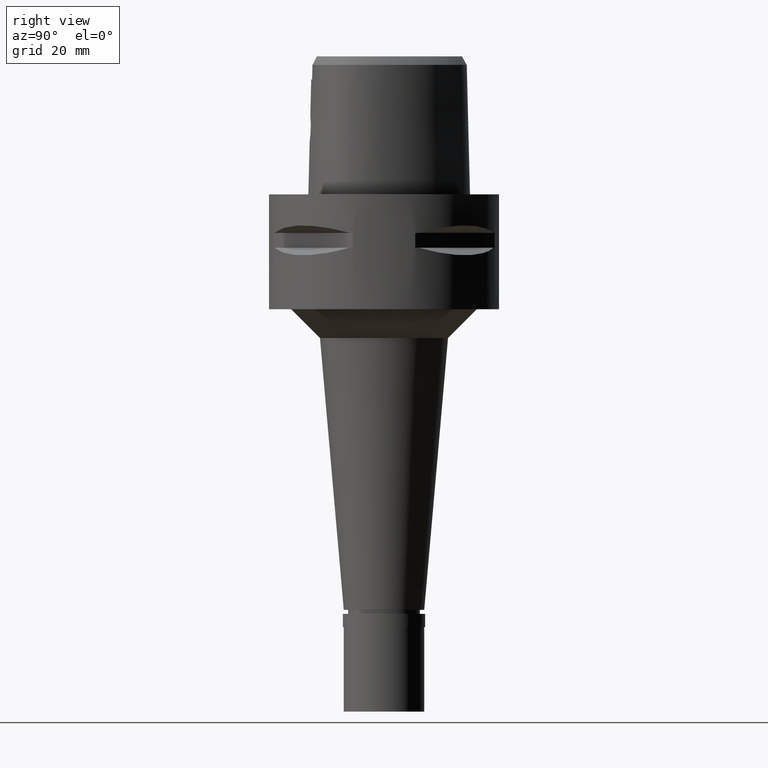
[diagram: clean part render]
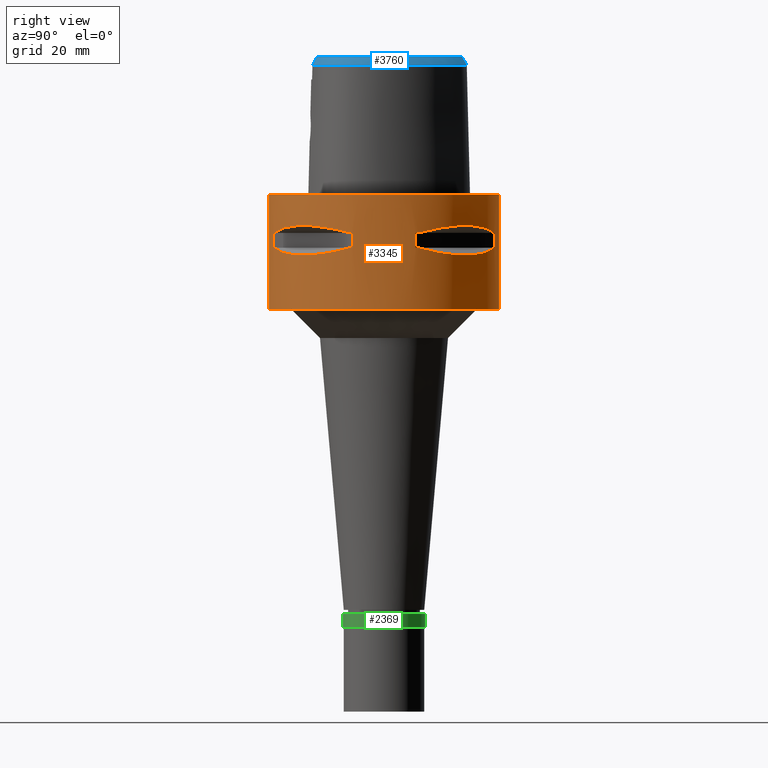
[diagram: same view with three faces highlighted in distinct colors, each labeled with its STEP entity id]
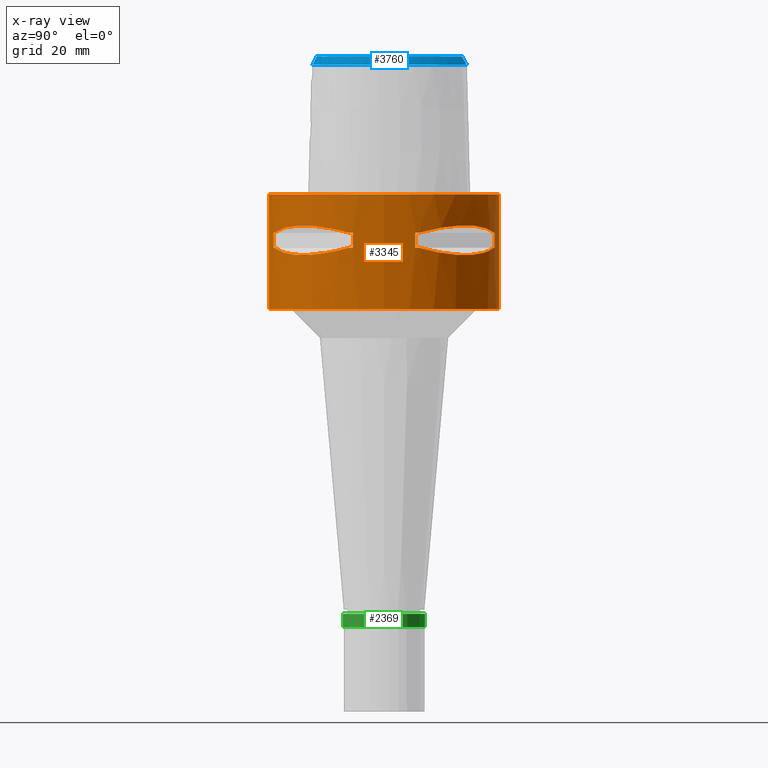
[diagram: x-ray of the same camera — body ghosted, the three highlighted faces saturated]
A machine part, right view with three faces highlighted in distinct colors.
The next image is the same camera in x-ray (body ghosted, the three faces saturated) — at least one of them is partly hidden behind the body in this view.
Their STEP definitions:

[orange] entity #3345 — the highlighted cylindrical surface (partial cylindrical patch) has radius 20 mm, axis along (0, 0, -1).
#32 = CARTESIAN_POINT ( 'NONE',  ( 0.0000000000000000000, 0.0000000000000000000, -9.299999999999998934 ) ) ;
#54 = CIRCLE ( 'NONE', #4003, 20.00000000000000000 ) ;
#57 = CARTESIAN_POINT ( 'NONE',  ( 7.974729623724734928, -18.37435100509765817, -9.808037949571737357 ) ) ;
#69 = CARTESIAN_POINT ( 'NONE',  ( 6.037787676659999825, 19.06685920573999837, -6.700000000000000178 ) ) ;
#76 = CARTESIAN_POINT ( 'NONE',  ( 10.41688921769544152, -17.07309310408732017, -10.27380911531018626 ) ) ;
#96 = CARTESIAN_POINT ( 'NONE',  ( 6.037787676659999825, 19.06685920573999837, -9.299999999999998934 ) ) ;
#112 = CARTESIAN_POINT ( 'NONE',  ( 11.78782756882606364, 16.23556379045571063, -5.510086664174642657 ) ) ;
#125 = VECTOR ( 'NONE', #1852, 1000.000000000000000 ) ;
#156 = CARTESIAN_POINT ( 'NONE',  ( 17.73693809362815088, 9.258624582125795754, -10.07196314004715099 ) ) ;
#232 = CARTESIAN_POINT ( 'NONE',  ( 0.0000000000000000000, 0.0000000000000000000, 0.0000000000000000000 ) ) ;
#268 = AXIS2_PLACEMENT_3D ( 'NONE', #32, #3578, #2477 ) ;
#269 = AXIS2_PLACEMENT_3D ( 'NONE', #2880, #4284, #2174 ) ;
#342 = ORIENTED_EDGE ( 'NONE', *, *, #2481, .T. ) ;
#343 = CIRCLE ( 'NONE', #2329, 20.00000000000000000 ) ;
#348 = DIRECTION ( 'NONE',  ( 0.0000000000000000000, 0.0000000000000000000, 1.000000000000000000 ) ) ;
#379 = CARTESIAN_POINT ( 'NONE',  ( 19.24906036483000094, -5.428966298579000593, -9.299999999999998934 ) ) ;
#388 = EDGE_CURVE ( 'NONE', #1704, #2177, #4295, .T. ) ;
#434 = CARTESIAN_POINT ( 'NONE',  ( 0.0000000000000000000, 20.00000000000000000, 0.0000000000000000000 ) ) ;
#473 = CARTESIAN_POINT ( 'NONE',  ( 5.428966298580000682, 19.24906036483000094, -9.299999999999998934 ) ) ;
#499 = ORIENTED_EDGE ( 'NONE', *, *, #4597, .F. ) ;
#537 = CARTESIAN_POINT ( 'NONE',  ( 13.03584482972171266, -15.24842641774018581, -5.401930550037071121 ) ) ;
#552 = CARTESIAN_POINT ( 'NONE',  ( 13.59286613331094351, 14.69143800709372627, -10.59808963984076335 ) ) ;
#573 = CIRCLE ( 'NONE', #3400, 20.00000000000000000 ) ;
#580 = EDGE_CURVE ( 'NONE', #1644, #904, #1312, .T. ) ;
#586 = CARTESIAN_POINT ( 'NONE',  ( 9.064227960972564446, -17.89933467640224052, -5.942799019125474480 ) ) ;
#604 = CYLINDRICAL_SURFACE ( 'NONE', #2045, 20.00000000000000000 ) ;
#605 = CARTESIAN_POINT ( 'NONE',  ( 18.81740308416346608, 6.825550513448870760, -9.519762796229871427 ) ) ;
#650 = CIRCLE ( 'NONE', #1897, 20.00000000000000000 ) ;
#666 = FACE_BOUND ( 'NONE', #4525, .T. ) ;
#685 = DIRECTION ( 'NONE',  ( 0.9624530182415160784, -0.2714483149290045083, 0.0000000000000000000 ) ) ;
#728 = ORIENTED_EDGE ( 'NONE', *, *, #1124, .F. ) ;
#750 = VERTEX_POINT ( 'NONE', #1203 ) ;
#763 = CARTESIAN_POINT ( 'NONE',  ( 0.0000000000000000000, 0.0000000000000000000, -9.299999999999998934 ) ) ;
#775 = VERTEX_POINT ( 'NONE', #4491 ) ;
#795 = EDGE_CURVE ( 'NONE', #2006, #2554, #1519, .T. ) ;
#811 = CARTESIAN_POINT ( 'NONE',  ( 16.83802176568802622, -10.79324770715252413, -10.33148935319403883 ) ) ;
#817 = CARTESIAN_POINT ( 'NONE',  ( 19.06685920573999837, 6.037787676656000357, -9.299999999999998934 ) ) ;
#854 = CARTESIAN_POINT ( 'NONE',  ( 6.037787676659999825, -19.06685920573999837, -6.700000000000000178 ) ) ;
#860 = EDGE_CURVE ( 'NONE', #3029, #2282, #2874, .T. ) ;
#892 = CARTESIAN_POINT ( 'NONE',  ( 10.58740791271423909, 16.96779488243710787, -10.30043526206615567 ) ) ;
#904 = VERTEX_POINT ( 'NONE', #3972 ) ;
#914 = CARTESIAN_POINT ( 'NONE',  ( 17.04620345718633700, 10.46079808215841567, -10.28075718178489417 ) ) ;
#924 = CIRCLE ( 'NONE', #3685, 20.00000000000000000 ) ;
#928 = EDGE_CURVE ( 'NONE', #1041, #775, #924, .T. ) ;
#934 = ORIENTED_EDGE ( 'NONE', *, *, #388, .T. ) ;
#946 = CARTESIAN_POINT ( 'NONE',  ( 11.07873582668854873, 16.65304730897659979, -10.37252388421045168 ) ) ;
#1017 = ORIENTED_EDGE ( 'NONE', *, *, #4045, .T. ) ;
#1039 = CARTESIAN_POINT ( 'NONE',  ( 19.24906036483000094, 5.428966298580000682, -6.700000000000000178 ) ) ;
#1041 = VERTEX_POINT ( 'NONE', #3127 ) ;
#1124 = EDGE_CURVE ( 'NONE', #2652, #904, #2499, .T. ) ;
#1132 = CARTESIAN_POINT ( 'NONE',  ( 11.83046278586042455, -16.20025983931244795, -10.49456541975413160 ) ) ;
#1203 = CARTESIAN_POINT ( 'NONE',  ( 0.0000000000000000000, -20.00000000000000000, 0.0000000000000000000 ) ) ;
#1215 = CARTESIAN_POINT ( 'NONE',  ( 17.38810193308686536, 9.886368560429467323, -10.18582677984566942 ) ) ;
#1225 = CARTESIAN_POINT ( 'NONE',  ( 15.24842641774014851, -13.03584482972175884, -5.401917027256927462 ) ) ;
#1267 = CARTESIAN_POINT ( 'NONE',  ( 7.613705726455415324, 18.56782271116866667, -9.739635053951536392 ) ) ;
#1295 = CARTESIAN_POINT ( 'NONE',  ( 0.0000000000000000000, 20.00000000000000000, 0.0000000000000000000 ) ) ;
#1303 = DIRECTION ( 'NONE',  ( 0.0000000000000000000, 1.000000000000000000, 0.0000000000000000000 ) ) ;
#1310 = VERTEX_POINT ( 'NONE', #4478 ) ;
#1312 = CIRCLE ( 'NONE', #269, 20.00000000000000711 ) ;
#1352 = B_SPLINE_CURVE_WITH_KNOTS ( 'NONE', 3,
 ( #854, #3375, #586, #4064, #537, #1225, #4435, #2262, #1964, #3785 ),
 .UNSPECIFIED., .F., .F.,
 ( 4, 2, 2, 2, 4 ),
 ( 0.0000000000000000000, 0.2500000000000000000, 0.5000000000000000000, 0.7500000000000000000, 1.000000000000000000 ),
 .UNSPECIFIED. ) ;
#1421 = DIRECTION ( 'NONE',  ( 0.0000000000000000000, 0.0000000000000000000, -1.000000000000000000 ) ) ;
#1430 = CARTESIAN_POINT ( 'NONE',  ( 16.27164763637911804, -11.64036391731683473, -10.44610182776454010 ) ) ;
#1489 = CARTESIAN_POINT ( 'NONE',  ( 16.92907764914690816, -10.64933512882904587, -10.30991069787599557 ) ) ;
#1493 = CARTESIAN_POINT ( 'NONE',  ( 19.06685920573999837, 6.037787676659999825, -6.700000000000000178 ) ) ;
#1514 = B_SPLINE_CURVE_WITH_KNOTS ( 'NONE', 3,
 ( #2849, #2566, #57, #2131, #3201, #2930, #3262, #76, #2873, #3995, #1132, #3242, #2506, #4019, #1430, #1770, #811, #1489, #3619, #3579, #2524, #3953, #3279, #2211 ),
 .UNSPECIFIED., .F., .F.,
 ( 4, 1, 1, 1, 1, 1, 2, 2, 2, 1, 1, 1, 1, 1, 2, 2, 4 ),
 ( 0.0000000000000000000, 0.1250000000000094091, 0.1875000000000141831, 0.2187500000000164591, 0.2343750000000175415, 0.2421875000000181521, 0.2460937500000183464, 0.2500000000000185407, 0.5000000000000102141, 0.6250000000000058842, 0.6875000000000037748, 0.7187500000000027756, 0.7343750000000024425, 0.7421875000000022204, 0.7460937500000022204, 0.7500000000000021094, 1.000000000000000000 ),
 .UNSPECIFIED. ) ;
#1515 = ORIENTED_EDGE ( 'NONE', *, *, #4071, .F. ) ;
#1517 = EDGE_CURVE ( 'NONE', #1667, #4314, #343, .T. ) ;
#1519 = CIRCLE ( 'NONE', #268, 20.00000000000000711 ) ;
#1522 = VECTOR ( 'NONE', #2178, 1000.000000000000000 ) ;
#1525 = CARTESIAN_POINT ( 'NONE',  ( 15.24842641774012719, 13.03584482972177838, -5.401930550037071121 ) ) ;
#1568 = CARTESIAN_POINT ( 'NONE',  ( 10.64933512882904587, 16.92907764914690816, -10.30991069787599557 ) ) ;
#1569 = EDGE_LOOP ( 'NONE', ( #1017, #4602, #3705, #3747, #3830, #1515, #2512, #2221 ) ) ;
#1595 = AXIS2_PLACEMENT_3D ( 'NONE', #763, #1601, #1963 ) ;
#1601 = DIRECTION ( 'NONE',  ( 0.0000000000000000000, 0.0000000000000000000, -1.000000000000000000 ) ) ;
#1644 = VERTEX_POINT ( 'NONE', #817 ) ;
#1649 = VERTEX_POINT ( 'NONE', #434 ) ;
#1667 = VERTEX_POINT ( 'NONE', #2597 ) ;
#1679 = EDGE_CURVE ( 'NONE', #1704, #2282, #2552, .T. ) ;
#1692 = EDGE_LOOP ( 'NONE', ( #342, #3825, #4053, #499 ) ) ;
#1704 = VERTEX_POINT ( 'NONE', #473 ) ;
#1770 = CARTESIAN_POINT ( 'NONE',  ( 16.65304730897659979, -11.07873582668854873, -10.37252388421045168 ) ) ;
#1785 = CARTESIAN_POINT ( 'NONE',  ( 19.24906036483000094, 5.428966298579000593, -6.700000000000000178 ) ) ;
#1791 = CARTESIAN_POINT ( 'NONE',  ( 0.0000000000000000000, 0.0000000000000000000, -6.700000000000000178 ) ) ;
#1805 = CIRCLE ( 'NONE', #2538, 20.00000000000000711 ) ;
#1841 = CARTESIAN_POINT ( 'NONE',  ( 5.428966298579000593, 19.24906036483000094, -9.299999999999998934 ) ) ;
#1845 = DIRECTION ( 'NONE',  ( 0.2714483149290045083, -0.9624530182415160784, 0.0000000000000000000 ) ) ;
#1852 = DIRECTION ( 'NONE',  ( 0.0000000000000000000, 0.0000000000000000000, 1.000000000000000000 ) ) ;
#1861 = CARTESIAN_POINT ( 'NONE',  ( 9.064296220445349661, 17.89930010962307705, -5.942778734625640880 ) ) ;
#1897 = AXIS2_PLACEMENT_3D ( 'NONE', #3573, #3256, #1845 ) ;
#1929 = LINE ( 'NONE', #3367, #3536 ) ;
#1934 = DIRECTION ( 'NONE',  ( 0.0000000000000000000, 0.0000000000000000000, 1.000000000000000000 ) ) ;
#1963 = DIRECTION ( 'NONE',  ( 0.2714483149290045083, 0.9624530182415160784, 0.0000000000000000000 ) ) ;
#1964 = CARTESIAN_POINT ( 'NONE',  ( 18.57569612330580711, -7.588842109405616654, -6.267301168158926572 ) ) ;
#2004 = CARTESIAN_POINT ( 'NONE',  ( 6.037787676659999825, 19.06685920573999837, -9.299999999999998934 ) ) ;
#2006 = VERTEX_POINT ( 'NONE', #3539 ) ;
#2023 = FACE_BOUND ( 'NONE', #1569, .T. ) ;
#2045 = AXIS2_PLACEMENT_3D ( 'NONE', #3143, #2067, #4246 ) ;
#2061 = B_SPLINE_CURVE_WITH_KNOTS ( 'NONE', 3,
 ( #4012, #2947, #2922, #4340, #1525, #3236, #112, #1861, #3947, #69 ),
 .UNSPECIFIED., .F., .F.,
 ( 4, 2, 2, 2, 4 ),
 ( 0.0000000000000000000, 0.2500000000000000000, 0.5000000000000000000, 0.7500000000000000000, 1.000000000000000000 ),
 .UNSPECIFIED. ) ;
#2067 = DIRECTION ( 'NONE',  ( 0.0000000000000000000, 0.0000000000000000000, -1.000000000000000000 ) ) ;
#2085 = EDGE_CURVE ( 'NONE', #2006, #4314, #1514, .T. ) ;
#2094 = ORIENTED_EDGE ( 'NONE', *, *, #1679, .F. ) ;
#2131 = CARTESIAN_POINT ( 'NONE',  ( 9.258624582125795754, -17.73693809362815088, -10.07196314004715099 ) ) ;
#2137 = CARTESIAN_POINT ( 'NONE',  ( 0.0000000000000000000, 0.0000000000000000000, -9.299999999999998934 ) ) ;
#2174 = DIRECTION ( 'NONE',  ( 0.9533429602871387187, 0.3018893838328123858, 0.0000000000000000000 ) ) ;
#2177 = VERTEX_POINT ( 'NONE', #96 ) ;
#2178 = DIRECTION ( 'NONE',  ( 0.0000000000000000000, 0.0000000000000000000, 1.000000000000000000 ) ) ;
#2186 = EDGE_CURVE ( 'NONE', #1667, #2439, #3642, .T. ) ;
#2211 = CARTESIAN_POINT ( 'NONE',  ( 19.06685920573999837, -6.037787676659999825, -9.299999999999998934 ) ) ;
#2220 = LINE ( 'NONE', #3666, #2268 ) ;
#2221 = ORIENTED_EDGE ( 'NONE', *, *, #2417, .T. ) ;
#2262 = CARTESIAN_POINT ( 'NONE',  ( 17.89930010962307705, -9.064296220445340779, -5.942778734625640880 ) ) ;
#2268 = VECTOR ( 'NONE', #4447, 1000.000000000000000 ) ;
#2277 = DIRECTION ( 'NONE',  ( 0.9533429602871387187, -0.3018893838328123858, 0.0000000000000000000 ) ) ;
#2278 = ORIENTED_EDGE ( 'NONE', *, *, #860, .T. ) ;
#2282 = VERTEX_POINT ( 'NONE', #3402 ) ;
#2326 = CARTESIAN_POINT ( 'NONE',  ( 10.54606745823029712, 16.99353821201643910, -10.29406776248769440 ) ) ;
#2329 = AXIS2_PLACEMENT_3D ( 'NONE', #2137, #4245, #685 ) ;
#2351 = CARTESIAN_POINT ( 'NONE',  ( 12.72622750479833797, 15.46304525448562828, -10.55929324095781041 ) ) ;
#2417 = EDGE_CURVE ( 'NONE', #1310, #2993, #1352, .T. ) ;
#2439 = VERTEX_POINT ( 'NONE', #3404 ) ;
#2477 = DIRECTION ( 'NONE',  ( 0.3018893838328123858, -0.9533429602871387187, 0.0000000000000000000 ) ) ;
#2481 = EDGE_CURVE ( 'NONE', #1649, #750, #54, .T. ) ;
#2499 = LINE ( 'NONE', #1785, #4592 ) ;
#2506 = CARTESIAN_POINT ( 'NONE',  ( 14.69143800709372627, -13.59286613331094351, -10.59808963984076335 ) ) ;
#2512 = ORIENTED_EDGE ( 'NONE', *, *, #2935, .T. ) ;
#2524 = CARTESIAN_POINT ( 'NONE',  ( 17.00564674891199246, -10.52654956716423484, -10.29104290631413576 ) ) ;
#2538 = AXIS2_PLACEMENT_3D ( 'NONE', #2664, #4480, #2277 ) ;
#2552 = LINE ( 'NONE', #1841, #1522 ) ;
#2554 = VERTEX_POINT ( 'NONE', #3805 ) ;
#2566 = CARTESIAN_POINT ( 'NONE',  ( 6.825550513448870760, -18.81740308416346608, -9.519762796229871427 ) ) ;
#2597 = CARTESIAN_POINT ( 'NONE',  ( 19.24906036483000094, -5.428966298580000682, -9.299999999999998934 ) ) ;
#2652 = VERTEX_POINT ( 'NONE', #1039 ) ;
#2655 = EDGE_CURVE ( 'NONE', #2652, #4131, #573, .T. ) ;
#2664 = CARTESIAN_POINT ( 'NONE',  ( 0.0000000000000000000, 0.0000000000000000000, -6.700000000000000178 ) ) ;
#2825 = ORIENTED_EDGE ( 'NONE', *, *, #2655, .T. ) ;
#2849 = CARTESIAN_POINT ( 'NONE',  ( 6.037787676656000357, -19.06685920573999837, -9.299999999999998934 ) ) ;
#2865 = EDGE_CURVE ( 'NONE', #4131, #3029, #2061, .T. ) ;
#2872 = DIRECTION ( 'NONE',  ( 0.3018893838328123858, 0.9533429602871387187, 0.0000000000000000000 ) ) ;
#2873 = CARTESIAN_POINT ( 'NONE',  ( 10.46079808215841567, -17.04620345718633700, -10.28075718178489417 ) ) ;
#2874 = CIRCLE ( 'NONE', #2936, 20.00000000000000711 ) ;
#2880 = CARTESIAN_POINT ( 'NONE',  ( 0.0000000000000000000, 0.0000000000000000000, -9.299999999999998934 ) ) ;
#2922 = CARTESIAN_POINT ( 'NONE',  ( 17.89933467640223697, 9.064227960972564446, -5.942799019125474480 ) ) ;
#2930 = CARTESIAN_POINT ( 'NONE',  ( 10.19668967435709206, -17.20615142661460695, -10.23823386088513132 ) ) ;
#2935 = EDGE_CURVE ( 'NONE', #3732, #1310, #650, .T. ) ;
#2936 = AXIS2_PLACEMENT_3D ( 'NONE', #1791, #4327, #2872 ) ;
#2947 = CARTESIAN_POINT ( 'NONE',  ( 18.57571147347044871, 7.588793634791458409, -6.267314691158815343 ) ) ;
#2993 = VERTEX_POINT ( 'NONE', #4298 ) ;
#3024 = DIRECTION ( 'NONE',  ( 0.0000000000000000000, -1.000000000000000000, 0.0000000000000000000 ) ) ;
#3027 = DIRECTION ( 'NONE',  ( 0.0000000000000000000, 0.0000000000000000000, -1.000000000000000000 ) ) ;
#3029 = VERTEX_POINT ( 'NONE', #3743 ) ;
#3046 = CARTESIAN_POINT ( 'NONE',  ( 18.37435100509765817, 7.974729623724734928, -9.808037949571737357 ) ) ;
#3066 = CARTESIAN_POINT ( 'NONE',  ( 17.03197491928962748, 10.48392761238952708, -10.28439099668885248 ) ) ;
#3097 = DIRECTION ( 'NONE',  ( 0.0000000000000000000, 0.0000000000000000000, -1.000000000000000000 ) ) ;
#3127 = CARTESIAN_POINT ( 'NONE',  ( 0.0000000000000000000, -20.00000000000000000, -20.00000000000000000 ) ) ;
#3128 = DIRECTION ( 'NONE',  ( 0.9624530182415160784, 0.2714483149290045083, 0.0000000000000000000 ) ) ;
#3143 = CARTESIAN_POINT ( 'NONE',  ( 0.0000000000000000000, 0.0000000000000000000, 4.299999999999999822 ) ) ;
#3149 = CARTESIAN_POINT ( 'NONE',  ( 0.0000000000000000000, 0.0000000000000000000, -6.700000000000000178 ) ) ;
#3201 = CARTESIAN_POINT ( 'NONE',  ( 9.886368560429467323, -17.38810193308686536, -10.18582677984566942 ) ) ;
#3236 = CARTESIAN_POINT ( 'NONE',  ( 13.03584482972173575, 15.24842641774016450, -5.401917027256927462 ) ) ;
#3242 = CARTESIAN_POINT ( 'NONE',  ( 13.04353085699901804, -15.24067460456459600, -10.59804935437259488 ) ) ;
#3256 = DIRECTION ( 'NONE',  ( 0.0000000000000000000, 0.0000000000000000000, 1.000000000000000000 ) ) ;
#3262 = CARTESIAN_POINT ( 'NONE',  ( 10.35096251251484389, -17.11329306682806717, -10.26330621668990872 ) ) ;
#3279 = CARTESIAN_POINT ( 'NONE',  ( 18.56782271116866667, -7.613705726455415324, -9.739635053951536392 ) ) ;
#3345 = ADVANCED_FACE ( 'NONE', ( #3497, #2023, #666 ), #604, .T. ) ;
#3347 = CARTESIAN_POINT ( 'NONE',  ( 17.20615142661460695, 10.19668967435709206, -10.23823386088513132 ) ) ;
#3367 = CARTESIAN_POINT ( 'NONE',  ( 5.428966298579000593, -19.24906036483000094, -6.700000000000000178 ) ) ;
#3375 = CARTESIAN_POINT ( 'NONE',  ( 7.588793634791429987, -18.57571147347045937, -6.267314691158815343 ) ) ;
#3378 = CARTESIAN_POINT ( 'NONE',  ( 19.06685920573999837, -6.037787676659999825, -9.299999999999998934 ) ) ;
#3395 = CARTESIAN_POINT ( 'NONE',  ( 17.07309310408732017, 10.41688921769544152, -10.27380911531018626 ) ) ;
#3400 = AXIS2_PLACEMENT_3D ( 'NONE', #3149, #348, #3128 ) ;
#3402 = CARTESIAN_POINT ( 'NONE',  ( 5.428966298579000593, 19.24906036483000094, -6.700000000000000178 ) ) ;
#3404 = CARTESIAN_POINT ( 'NONE',  ( 19.24906036483000094, -5.428966298579000593, -6.700000000000000178 ) ) ;
#3477 = B_SPLINE_CURVE_WITH_KNOTS ( 'NONE', 3,
 ( #4428, #605, #3046, #156, #1215, #3347, #4057, #3395, #914, #3066, #3801, #3777, #552, #2351, #4087, #946, #4165, #1568, #892, #2326, #4457, #3744, #1267, #2004 ),
 .UNSPECIFIED., .F., .F.,
 ( 4, 1, 1, 1, 1, 1, 2, 2, 2, 1, 1, 1, 1, 1, 2, 2, 4 ),
 ( 0.0000000000000000000, 0.1250000000000094091, 0.1875000000000141831, 0.2187500000000164591, 0.2343750000000175415, 0.2421875000000181521, 0.2460937500000183464, 0.2500000000000185407, 0.5000000000000102141, 0.6250000000000058842, 0.6875000000000037748, 0.7187500000000027756, 0.7343750000000024425, 0.7421875000000022204, 0.7460937500000022204, 0.7500000000000021094, 1.000000000000000000 ),
 .UNSPECIFIED. ) ;
#3497 = FACE_OUTER_BOUND ( 'NONE', #1692, .T. ) ;
#3536 = VECTOR ( 'NONE', #4110, 1000.000000000000000 ) ;
#3539 = CARTESIAN_POINT ( 'NONE',  ( 6.037787676656000357, -19.06685920573999837, -9.299999999999998934 ) ) ;
#3573 = CARTESIAN_POINT ( 'NONE',  ( 0.0000000000000000000, 0.0000000000000000000, -6.700000000000000178 ) ) ;
#3578 = DIRECTION ( 'NONE',  ( 0.0000000000000000000, 0.0000000000000000000, -1.000000000000000000 ) ) ;
#3579 = CARTESIAN_POINT ( 'NONE',  ( 16.99353821201643910, -10.54606745823029712, -10.29406776248769440 ) ) ;
#3619 = CARTESIAN_POINT ( 'NONE',  ( 16.96779488243710787, -10.58740791271423909, -10.30043526206615567 ) ) ;
#3642 = LINE ( 'NONE', #379, #125 ) ;
#3666 = CARTESIAN_POINT ( 'NONE',  ( 0.0000000000000000000, -20.00000000000000000, 0.0000000000000000000 ) ) ;
#3685 = AXIS2_PLACEMENT_3D ( 'NONE', #4385, #1934, #3024 ) ;
#3705 = ORIENTED_EDGE ( 'NONE', *, *, #1517, .T. ) ;
#3732 = VERTEX_POINT ( 'NONE', #4473 ) ;
#3743 = CARTESIAN_POINT ( 'NONE',  ( 6.037787676659999825, 19.06685920573999837, -6.700000000000000178 ) ) ;
#3744 = CARTESIAN_POINT ( 'NONE',  ( 9.102657680280412222, 17.88526274348011214, -10.06884320373553443 ) ) ;
#3745 = EDGE_CURVE ( 'NONE', #750, #1041, #2220, .T. ) ;
#3747 = ORIENTED_EDGE ( 'NONE', *, *, #2085, .F. ) ;
#3751 = VECTOR ( 'NONE', #3097, 1000.000000000000000 ) ;
#3777 = CARTESIAN_POINT ( 'NONE',  ( 15.24067460456459600, 13.04353085699901804, -10.59804935437259488 ) ) ;
#3785 = CARTESIAN_POINT ( 'NONE',  ( 19.06685920573999837, -6.037787676659999825, -6.700000000000000178 ) ) ;
#3801 = CARTESIAN_POINT ( 'NONE',  ( 16.20025983931244795, 11.83046278586042455, -10.49456541975413160 ) ) ;
#3802 = LINE ( 'NONE', #1295, #3751 ) ;
#3805 = CARTESIAN_POINT ( 'NONE',  ( 5.428966298579000593, -19.24906036483000094, -9.299999999999998934 ) ) ;
#3825 = ORIENTED_EDGE ( 'NONE', *, *, #3745, .T. ) ;
#3830 = ORIENTED_EDGE ( 'NONE', *, *, #795, .T. ) ;
#3918 = EDGE_CURVE ( 'NONE', #1644, #2177, #3477, .T. ) ;
#3947 = CARTESIAN_POINT ( 'NONE',  ( 7.588842109405645076, 18.57569612330578934, -6.267301168158926572 ) ) ;
#3953 = CARTESIAN_POINT ( 'NONE',  ( 17.88526274348011214, -9.102657680280412222, -10.06884320373553443 ) ) ;
#3972 = CARTESIAN_POINT ( 'NONE',  ( 19.24906036483000094, 5.428966298579000593, -9.299999999999998934 ) ) ;
#3995 = CARTESIAN_POINT ( 'NONE',  ( 10.48392761238952708, -17.03197491928962748, -10.28439099668885248 ) ) ;
#4003 = AXIS2_PLACEMENT_3D ( 'NONE', #232, #3027, #1303 ) ;
#4009 = ORIENTED_EDGE ( 'NONE', *, *, #2865, .T. ) ;
#4012 = CARTESIAN_POINT ( 'NONE',  ( 19.06685920573999837, 6.037787676659999825, -6.700000000000000178 ) ) ;
#4019 = CARTESIAN_POINT ( 'NONE',  ( 15.46304525448562828, -12.72622750479833797, -10.55929324095781041 ) ) ;
#4045 = EDGE_CURVE ( 'NONE', #2993, #2439, #1805, .T. ) ;
#4053 = ORIENTED_EDGE ( 'NONE', *, *, #928, .T. ) ;
#4057 = CARTESIAN_POINT ( 'NONE',  ( 17.11329306682806717, 10.35096251251484389, -10.26330621668990872 ) ) ;
#4064 = CARTESIAN_POINT ( 'NONE',  ( 11.78776565403155452, -16.23560874349854188, -5.510106948674472704 ) ) ;
#4071 = EDGE_CURVE ( 'NONE', #3732, #2554, #1929, .T. ) ;
#4087 = CARTESIAN_POINT ( 'NONE',  ( 11.64036391731683473, 16.27164763637911804, -10.44610182776454010 ) ) ;
#4105 = ORIENTED_EDGE ( 'NONE', *, *, #3918, .F. ) ;
#4110 = DIRECTION ( 'NONE',  ( 0.0000000000000000000, 0.0000000000000000000, -1.000000000000000000 ) ) ;
#4131 = VERTEX_POINT ( 'NONE', #1493 ) ;
#4137 = ORIENTED_EDGE ( 'NONE', *, *, #580, .T. ) ;
#4165 = CARTESIAN_POINT ( 'NONE',  ( 10.79324770715252413, 16.83802176568802622, -10.33148935319403883 ) ) ;
#4245 = DIRECTION ( 'NONE',  ( 0.0000000000000000000, 0.0000000000000000000, -1.000000000000000000 ) ) ;
#4246 = DIRECTION ( 'NONE',  ( 0.0000000000000000000, -1.000000000000000000, 0.0000000000000000000 ) ) ;
#4284 = DIRECTION ( 'NONE',  ( 0.0000000000000000000, 0.0000000000000000000, -1.000000000000000000 ) ) ;
#4295 = CIRCLE ( 'NONE', #1595, 20.00000000000000000 ) ;
#4298 = CARTESIAN_POINT ( 'NONE',  ( 19.06685920573999837, -6.037787676659999825, -6.700000000000000178 ) ) ;
#4314 = VERTEX_POINT ( 'NONE', #3378 ) ;
#4327 = DIRECTION ( 'NONE',  ( 0.0000000000000000000, 0.0000000000000000000, 1.000000000000000000 ) ) ;
#4340 = CARTESIAN_POINT ( 'NONE',  ( 16.23560874349853833, 11.78776565403155097, -5.510106948674472704 ) ) ;
#4385 = CARTESIAN_POINT ( 'NONE',  ( 0.0000000000000000000, 0.0000000000000000000, -20.00000000000000000 ) ) ;
#4428 = CARTESIAN_POINT ( 'NONE',  ( 19.06685920573999837, 6.037787676656000357, -9.299999999999998934 ) ) ;
#4435 = CARTESIAN_POINT ( 'NONE',  ( 16.23556379045570353, -11.78782756882607430, -5.510086664174642657 ) ) ;
#4447 = DIRECTION ( 'NONE',  ( 0.0000000000000000000, 0.0000000000000000000, -1.000000000000000000 ) ) ;
#4457 = CARTESIAN_POINT ( 'NONE',  ( 10.52654956716423484, 17.00564674891199246, -10.29104290631413576 ) ) ;
#4473 = CARTESIAN_POINT ( 'NONE',  ( 5.428966298580000682, -19.24906036483000094, -6.700000000000000178 ) ) ;
#4478 = CARTESIAN_POINT ( 'NONE',  ( 6.037787676659999825, -19.06685920573999837, -6.700000000000000178 ) ) ;
#4480 = DIRECTION ( 'NONE',  ( 0.0000000000000000000, 0.0000000000000000000, 1.000000000000000000 ) ) ;
#4491 = CARTESIAN_POINT ( 'NONE',  ( 0.0000000000000000000, 20.00000000000000000, -20.00000000000000000 ) ) ;
#4525 = EDGE_LOOP ( 'NONE', ( #2278, #2094, #934, #4105, #4137, #728, #2825, #4009 ) ) ;
#4592 = VECTOR ( 'NONE', #1421, 1000.000000000000000 ) ;
#4597 = EDGE_CURVE ( 'NONE', #1649, #775, #3802, .T. ) ;
#4602 = ORIENTED_EDGE ( 'NONE', *, *, #2186, .F. ) ;

[blue] entity #3760 — the highlighted face is a freeform B-spline surface patch.
#1 = CARTESIAN_POINT ( 'NONE',  ( 11.81006716205999929, 2.189212511262000227, 24.13052106193999791 ) ) ;
#4 = CARTESIAN_POINT ( 'NONE',  ( 2.692731913842567160, 13.03725377846676814, 24.00000000000009592 ) ) ;
#43 = CARTESIAN_POINT ( 'NONE',  ( 3.643846516945125735, -11.46587366694246057, 24.00000000000046541 ) ) ;
#77 = CARTESIAN_POINT ( 'NONE',  ( 10.34630807758000159, 5.492018247395999531, 24.13052106667999652 ) ) ;
#85 = CARTESIAN_POINT ( 'NONE',  ( 0.5039711947921106105, 14.40001989752710010, 22.52071729251865406 ) ) ;
#97 = CARTESIAN_POINT ( 'NONE',  ( 13.63227641653000077, -3.329449864847000118, 22.39013405248999788 ) ) ;
#107 = CARTESIAN_POINT ( 'NONE',  ( 1.963025303842000024, -11.60905832938000160, 24.13052098894000252 ) ) ;
#122 = CARTESIAN_POINT ( 'NONE',  ( 12.76105701684999971, 1.303132645100000042, 22.97026491545999960 ) ) ;
#145 = CARTESIAN_POINT ( 'NONE',  ( 6.796481422754999890, 10.18985262332000019, 24.13052082896000172 ) ) ;
#151 = CARTESIAN_POINT ( 'NONE',  ( 2.053400038376000047, -12.57996435537000046, 22.39013395503000226 ) ) ;
#164 = CARTESIAN_POINT ( 'NONE',  ( 4.089701272763999640, 12.65026199070999979, 23.55039357557999935 ) ) ;
#169 = CARTESIAN_POINT ( 'NONE',  ( 4.886111490270000246, -11.79522946400000016, 22.97026416467999965 ) ) ;
#183 = CARTESIAN_POINT ( 'NONE',  ( 0.05264591111794999362, 14.47844725670999999, 22.39013337268000114 ) ) ;
#191 = CARTESIAN_POINT ( 'NONE',  ( 2.377474434223707522, -12.13327925686193076, 23.12252361346799034 ) ) ;
#211 = CARTESIAN_POINT ( 'NONE',  ( 3.022968524366999699, 13.87733817391000102, 22.39013232731999992 ) ) ;
#219 = CARTESIAN_POINT ( 'NONE',  ( 11.49689449937999974, -7.634862238721999539, 23.55039188125000038 ) ) ;
#233 = CARTESIAN_POINT ( 'NONE',  ( 4.409224838283000381, 13.21689020455999852, 22.39013967663000315 ) ) ;
#244 = CARTESIAN_POINT ( 'NONE',  ( 10.27182342860999853, -8.908091600447997749, 23.55039166630000125 ) ) ;
#259 = CARTESIAN_POINT ( 'NONE',  ( 2.665957755131999729, 12.96914336242999966, 24.13052112091000012 ) ) ;
#272 = CARTESIAN_POINT ( 'NONE',  ( 12.98107568482999952, -5.337610351114999929, 22.97026233217999902 ) ) ;
#294 = CARTESIAN_POINT ( 'NONE',  ( 11.80026550024000187, -7.203430906077000095, 23.55039162015999921 ) ) ;
#311 = CARTESIAN_POINT ( 'NONE',  ( 6.808380321013999037, -10.86744992220000050, 23.55039202614999994 ) ) ;
#335 = CARTESIAN_POINT ( 'NONE',  ( 7.023094116408000076, 10.42310841187999948, 23.55039252870999889 ) ) ;
#340 = CARTESIAN_POINT ( 'NONE',  ( 12.56325666867697244, -4.604231586668755760, 23.99999999999251443 ) ) ;
#386 = CARTESIAN_POINT ( 'NONE',  ( -6.946551618187000727E-11, 14.40001989798000182, 22.52071729252999788 ) ) ;
#430 = CARTESIAN_POINT ( 'NONE',  ( 12.11794621808999928, 2.293931203665000140, 23.55039172617999910 ) ) ;
#445 = CARTESIAN_POINT ( 'NONE',  ( 11.79281037736000037, 4.811037878664000011, 22.39013422256000041 ) ) ;
#452 = CARTESIAN_POINT ( 'NONE',  ( 11.58874808009404944, -7.066197077816963379, 24.00000000000117240 ) ) ;
#464 = CARTESIAN_POINT ( 'NONE',  ( 13.50815129570999851, -0.6872791593790998910, 22.39013294135000010 ) ) ;
#493 = CARTESIAN_POINT ( 'NONE',  ( 9.058821782142000956, 9.154131836344999940, 22.39013268793999956 ) ) ;
#501 = CARTESIAN_POINT ( 'NONE',  ( 12.68166859856362017, 2.767886240359183958, 22.52071729251865406 ) ) ;
#502 = CARTESIAN_POINT ( 'NONE',  ( 1.595174849006000040, -12.61593824801999908, 22.39013396345000118 ) ) ;
#518 = CARTESIAN_POINT ( 'NONE',  ( 5.708241364273000329, 11.97788608952999923, 22.97026197387000224 ) ) ;
#524 = CARTESIAN_POINT ( 'NONE',  ( 11.01301037807066585, 6.358384389067590625, 22.52071729251865406 ) ) ;
#525 = CARTESIAN_POINT ( 'NONE',  ( 4.734221550404999590, -11.16280305125000005, 24.13052083704999617 ) ) ;
#562 = CARTESIAN_POINT ( 'NONE',  ( 2.081566592262000359, 13.17408557024999993, 24.13052111046999926 ) ) ;
#587 = CARTESIAN_POINT ( 'NONE',  ( -0.4184594666395000107, 14.46178523705999908, 22.39013273297000239 ) ) ;
#598 = CARTESIAN_POINT ( 'NONE',  ( 12.28880761164000113, -6.304289478161999583, 23.55039175217999770 ) ) ;
#611 = CARTESIAN_POINT ( 'NONE',  ( 0.5360558819430000232, 14.13437562999000008, 22.97026221495000087 ) ) ;
#620 = CARTESIAN_POINT ( 'NONE',  ( 12.35409406223999973, -5.163883963129999977, 24.13052106932999763 ) ) ;
#641 = CARTESIAN_POINT ( 'NONE',  ( 13.10515938457000118, -6.018904401567000129, 22.39013347390000064 ) ) ;
#646 = CARTESIAN_POINT ( 'NONE',  ( 9.085466894420580530, 7.629604351704164067, 24.00000000000098055 ) ) ;
#661 = CARTESIAN_POINT ( 'NONE',  ( 7.938065359938999421, -11.10350764480000052, 22.39013254726000213 ) ) ;
#682 = CARTESIAN_POINT ( 'NONE',  ( 10.06310865082999939, -8.658593698913001901, 24.13052107931999757 ) ) ;
#686 = B_SPLINE_CURVE_WITH_KNOTS ( 'NONE', 3,
 ( #1141, #85, #771, #3311, #2242, #4420, #524, #501, #1875, #3716, #798, #2270, #4078, #1497, #2219, #3691, #1167, #2917, #3649, #3434, #4396, #4354 ),
 .UNSPECIFIED., .F., .F.,
 ( 4, 1, 1, 1, 1, 1, 1, 1, 1, 1, 1, 1, 1, 1, 1, 1, 1, 1, 1, 4 ),
 ( 0.0000000000000000000, 0.04407253041124743059, 0.08814506081995632236, 0.1762901216374798963, 0.2644351824550034702, 0.3525802432724213786, 0.4407253040899449248, 0.5288703649074685265, 0.5729428953162830629, 0.6170154257248863239, 0.6610879561337009713, 0.6831242213380024353, 0.7051604865425157298, 0.7271967517468173048, 0.7492330169512245730, 0.7933055473599334162, 0.8373780777687481747, 0.8814506081774570179, 0.9695956689949595253, 1.000000000000000000 ),
 .UNSPECIFIED. ) ;
#713 = CARTESIAN_POINT ( 'NONE',  ( 7.567267065261185977, -10.28066430934599396, 24.00000000000040501 ) ) ;
#721 = EDGE_CURVE ( 'NONE', #2115, #4566, #4020, .T. ) ;
#764 = CARTESIAN_POINT ( 'NONE',  ( 11.70392928600000104, 3.404056909026999644, 23.55039170170999796 ) ) ;
#771 = CARTESIAN_POINT ( 'NONE',  ( 1.515894610910908824, 14.29262276006012122, 22.52071729251865406 ) ) ;
#791 = CARTESIAN_POINT ( 'NONE',  ( 7.551999690776000307, 9.411243118406000363, 24.13052098015000269 ) ) ;
#798 = CARTESIAN_POINT ( 'NONE',  ( 13.49620531830028547, -4.288887307215953015, 22.52071729251865406 ) ) ;
#800 = CARTESIAN_POINT ( 'NONE',  ( 8.997867597935785611, -9.518809110956514274, 23.99999999999496225 ) ) ;
#812 = CARTESIAN_POINT ( 'NONE',  ( 12.67541202357000074, -2.524797313681000244, 24.13052106633999827 ) ) ;
#816 = CARTESIAN_POINT ( 'NONE',  ( 2.145199990287635305, -11.88057979211152571, 23.61561775300132382 ) ) ;
#828 = CARTESIAN_POINT ( 'NONE',  ( 9.290494191592999940, 7.776171942349000332, 23.55039211651000386 ) ) ;
#840 = CARTESIAN_POINT ( 'NONE',  ( 1.548494969715999758, -11.96760294637000044, 23.55039197998999967 ) ) ;
#856 = CARTESIAN_POINT ( 'NONE',  ( 1.044471906240000081, 13.74859854691000116, 23.55039168776000125 ) ) ;
#880 = CARTESIAN_POINT ( 'NONE',  ( 2.903964934621999561, 13.57460657008000027, 22.97026192518000087 ) ) ;
#887 = CARTESIAN_POINT ( 'NONE',  ( 1.651404508219999956, -11.63434239444000085, 24.13052098694000236 ) ) ;
#894 = CARTESIAN_POINT ( 'NONE',  ( 1.908900751366000126, -11.68567549349000068, 24.00000000000000000 ) ) ;
#899 = CARTESIAN_POINT ( 'NONE',  ( 6.470915596208000053, 11.36601639632000094, 22.97026281048999863 ) ) ;
#923 = CARTESIAN_POINT ( 'NONE',  ( -0.2518070859322999455, 13.81966984059999959, 23.55039173855999834 ) ) ;
#938 = CARTESIAN_POINT ( 'NONE',  ( 12.49284704517999955, -5.798927442829000078, 23.55039184326999901 ) ) ;
#945 = CARTESIAN_POINT ( 'NONE',  ( 4.650015056714705608, 12.01535282295140483, 24.00000000000050804 ) ) ;
#953 = CARTESIAN_POINT ( 'NONE',  ( 0.9946140531067999557, 13.42712570436999897, 24.13052107308999794 ) ) ;
#962 = CARTESIAN_POINT ( 'NONE',  ( 8.443710186296000231, -10.13004444791999958, 23.55039172133999870 ) ) ;
#966 = CARTESIAN_POINT ( 'NONE',  ( -1.335434154418999929E-10, 13.57127880780999796, 24.00000000000000000 ) ) ;
#982 = CARTESIAN_POINT ( 'NONE',  ( 6.694042571477000436, -10.56298741109999995, 24.13052097485000047 ) ) ;
#988 = CARTESIAN_POINT ( 'NONE',  ( 6.095079845025041188, 10.92785127078161800, 23.99999999999433697 ) ) ;
#1007 = CARTESIAN_POINT ( 'NONE',  ( 6.044136204777000643, -11.81536993202999852, 22.39013724615000100 ) ) ;
#1013 = CARTESIAN_POINT ( 'NONE',  ( 12.73107502715672368, -3.278999632795051689, 23.99999999999948130 ) ) ;
#1029 = CARTESIAN_POINT ( 'NONE',  ( 11.77285838414000096, -6.613480974386000355, 24.13052105434999817 ) ) ;
#1033 = CARTESIAN_POINT ( 'NONE',  ( 12.74858362814809709, -2.523908814685404511, 24.00000000000288836 ) ) ;
#1100 = CARTESIAN_POINT ( 'NONE',  ( 8.325294977168017141, -9.907519125942503280, 23.99999999999520028 ) ) ;
#1116 = CARTESIAN_POINT ( 'NONE',  ( 12.69470388432999997, 0.1881434738186000266, 23.55039274139999961 ) ) ;
#1119 = ORIENTED_EDGE ( 'NONE', *, *, #1616, .F. ) ;
#1133 = CARTESIAN_POINT ( 'NONE',  ( 10.26384229193999964, 6.910602993273999850, 22.97026278285000345 ) ) ;
#1141 = CARTESIAN_POINT ( 'NONE',  ( -6.946551618187000727E-11, 14.40001989798000182, 22.52071729252999788 ) ) ;
#1160 = CARTESIAN_POINT ( 'NONE',  ( 12.65800950909999933, -3.274909345779999814, 24.13052098104000009 ) ) ;
#1167 = CARTESIAN_POINT ( 'NONE',  ( 10.46238780067448104, -9.543612998139542114, 22.52071729251865406 ) ) ;
#1176 = CARTESIAN_POINT ( 'NONE',  ( 12.73370433014999925, 2.503368588470999967, 22.39013305467000237 ) ) ;
#1184 = CARTESIAN_POINT ( 'NONE',  ( 1.525155030070999951, -11.64343529554000156, 24.13052098825999892 ) ) ;
#1198 = CARTESIAN_POINT ( 'NONE',  ( 13.56266444579000030, -4.084541792417999417, 22.39013341745000218 ) ) ;
#1207 = CARTESIAN_POINT ( 'NONE',  ( 3.631057320955000112, -11.39383492468000014, 24.13052112712000152 ) ) ;
#1226 = CARTESIAN_POINT ( 'NONE',  ( 1.094329759373000144, 14.07007138944000069, 22.97026230242000011 ) ) ;
#1236 = CARTESIAN_POINT ( 'NONE',  ( 4.962056460202999730, -12.11144267036999977, 22.39013582850000006 ) ) ;
#1273 = CARTESIAN_POINT ( 'NONE',  ( 6.682652394649999827, 11.61286806112000036, 22.39013371138999986 ) ) ;
#1284 = CARTESIAN_POINT ( 'NONE',  ( 10.96460251507999928, -8.720882068983000224, 22.97026233140999807 ) ) ;
#1304 = CARTESIAN_POINT ( 'NONE',  ( 1.144187612507000074, 14.39154423197000199, 22.39013291708999986 ) ) ;
#1317 = CARTESIAN_POINT ( 'NONE',  ( 7.804445020062999561, -10.80698900454000011, 22.97026206586000185 ) ) ;
#1333 = CARTESIAN_POINT ( 'NONE',  ( 4.966521560998000240, 12.49816764416000048, 22.97026533967000006 ) ) ;
#1342 = CARTESIAN_POINT ( 'NONE',  ( 12.81047503656000153, -4.653625616545999932, 23.55039166703999953 ) ) ;
#1362 = CARTESIAN_POINT ( 'NONE',  ( 11.75547755197000122, -7.832263417097999003, 22.97026274557000036 ) ) ;
#1367 = CARTESIAN_POINT ( 'NONE',  ( 10.97862720533234260, 4.421873472736538524, 23.99999999999694822 ) ) ;
#1386 = CARTESIAN_POINT ( 'NONE',  ( 8.959211652990999752, -9.456673158262001166, 24.13052101217999734 ) ) ;
#1392 = CARTESIAN_POINT ( 'NONE',  ( 11.47056307656593610, 3.308874133465899980, 23.99999999999646505 ) ) ;
#1411 = CARTESIAN_POINT ( 'NONE',  ( 12.30615389774999890, 3.649685486514000043, 22.39013296706000133 ) ) ;
#1446 = EDGE_CURVE ( 'NONE', #1563, #4221, #3606, .T. ) ;
#1490 = CARTESIAN_POINT ( 'NONE',  ( 13.23995273365000180, -4.043768985280999928, 22.97026262247999995 ) ) ;
#1497 = CARTESIAN_POINT ( 'NONE',  ( 12.48241502960211768, -7.206725676734489383, 22.52071729251865406 ) ) ;
#1508 = CARTESIAN_POINT ( 'NONE',  ( 12.00504159187999953, 3.526871197770999888, 22.97026233439000009 ) ) ;
#1532 = CARTESIAN_POINT ( 'NONE',  ( 10.53895638872999996, 7.083984501639999820, 22.39013366817999895 ) ) ;
#1556 = CARTESIAN_POINT ( 'NONE',  ( 12.98276514490999922, -3.293089518802000182, 23.55039200486000084 ) ) ;
#1562 = CARTESIAN_POINT ( 'NONE',  ( 2.714146305633000189, -11.85789670380999894, 23.55039186736000190 ) ) ;
#1563 = VERTEX_POINT ( 'NONE', #2855 ) ;
#1605 = CARTESIAN_POINT ( 'NONE',  ( 2.275367123264000035, 13.79513862625999820, 22.97026200755000147 ) ) ;
#1616 = EDGE_CURVE ( 'NONE', #1563, #2115, #686, .T. ) ;
#1631 = CARTESIAN_POINT ( 'NONE',  ( 1.598517095178000114, 13.64172969100000010, 23.55039183151999893 ) ) ;
#1640 = CARTESIAN_POINT ( 'NONE',  ( 11.23831144679000182, -7.437461060347000164, 24.13052101691999951 ) ) ;
#1663 = CARTESIAN_POINT ( 'NONE',  ( 9.547956059631001580, -9.060417169352000144, 24.13052099615000046 ) ) ;
#1678 = CARTESIAN_POINT ( 'NONE',  ( 3.701288243809000011, 13.58365224969000096, 22.39013690609999685 ) ) ;
#1691 = CARTESIAN_POINT ( 'NONE',  ( 8.290919099886998822, -9.842920133832000928, 24.13052106333999802 ) ) ;
#1698 = CARTESIAN_POINT ( 'NONE',  ( 0.4912642629216430468, 13.55865141013538810, 23.99999999999715072 ) ) ;
#1712 = CARTESIAN_POINT ( 'NONE',  ( 12.63048575984999999, -7.079371749764000299, 22.39013314818000211 ) ) ;
#1716 = CARTESIAN_POINT ( 'NONE',  ( 10.41037096114632199, 5.527356888184408845, 24.00000000000332534 ) ) ;
#1729 = CARTESIAN_POINT ( 'NONE',  ( 11.14458157508000014, -8.062720811790001108, 23.55039175694000164 ) ) ;
#1733 = CARTESIAN_POINT ( 'NONE',  ( 3.965883677374813399, 12.43068963207633537, 23.99999999999920774 ) ) ;
#1741 = EDGE_LOOP ( 'NONE', ( #1119, #3012, #2747, #3898 ) ) ;
#1753 = CARTESIAN_POINT ( 'NONE',  ( 9.555040812834000974, 7.965288032855999845, 22.97026328437999965 ) ) ;
#1758 = CARTESIAN_POINT ( 'NONE',  ( 12.25557177138684750, -5.713684847254512533, 23.99999999999986855 ) ) ;
#1823 = CARTESIAN_POINT ( 'NONE',  ( 10.56297693591936060, -8.306035104844490036, 24.00000000000041922 ) ) ;
#1835 = CARTESIAN_POINT ( 'NONE',  ( 11.49941250113000102, 4.670799153367000578, 22.97026313745999815 ) ) ;
#1853 = CARTESIAN_POINT ( 'NONE',  ( 7.249706810061000262, 10.65636420044000054, 22.97026422846000315 ) ) ;
#1868 = CARTESIAN_POINT ( 'NONE',  ( 9.713614098371998296, 6.563839976539999732, 24.13052101219999912 ) ) ;
#1875 = CARTESIAN_POINT ( 'NONE',  ( 13.44334616192403153, -0.2854647381888653634, 22.52071729251865406 ) ) ;
#1895 = CARTESIAN_POINT ( 'NONE',  ( 13.32586634456000141, -2.516899058418999857, 22.97026235573999742 ) ) ;
#1903 = CARTESIAN_POINT ( 'NONE',  ( 1.993150215353999721, -11.93269367137999915, 23.55039197763999681 ) ) ;
#1917 = CARTESIAN_POINT ( 'NONE',  ( 5.512611366719000650, 11.71807032371999924, 23.55039154430000181 ) ) ;
#1923 = CARTESIAN_POINT ( 'NONE',  ( 4.810166520337999074, -11.47901625763000055, 23.55039250086999658 ) ) ;
#1937 = CARTESIAN_POINT ( 'NONE',  ( 0.04593873170666999683, 13.50270745301999931, 24.13052103614999666 ) ) ;
#1965 = CARTESIAN_POINT ( 'NONE',  ( -0.3638434486150999847, 13.48835506962999986, 24.13052108802000006 ) ) ;
#1972 = CARTESIAN_POINT ( 'NONE',  ( 1.701985387849999976, -12.28239685419000082, 22.97026298214999684 ) ) ;
#1997 = CARTESIAN_POINT ( 'NONE',  ( 9.474655995778000772, -10.28520355238000050, 22.39013366836000074 ) ) ;
#2003 = CARTESIAN_POINT ( 'NONE',  ( 12.61485888652691045, -0.8159399761861386713, 24.00000000000277467 ) ) ;
#2010 = CARTESIAN_POINT ( 'NONE',  ( 6.259178797764999302, 11.11916473151999973, 23.55039190958999740 ) ) ;
#2019 = CARTESIAN_POINT ( 'NONE',  ( 7.537204340309000550, -10.21395172401999929, 24.13052110308000309 ) ) ;
#2043 = CARTESIAN_POINT ( 'NONE',  ( 5.949025508461000200, -11.50437562890000009, 22.97026507146999919 ) ) ;
#2049 = CARTESIAN_POINT ( 'NONE',  ( 9.775510958009922646, 6.602848413448859866, 24.00000000000114397 ) ) ;
#2062 = CARTESIAN_POINT ( 'NONE',  ( 9.738451248041998909, -9.324071979195000637, 23.55039195279000097 ) ) ;
#2084 = CARTESIAN_POINT ( 'NONE',  ( 8.299893102078000240, 8.541102620066999052, 24.13052109167000125 ) ) ;
#2115 = VERTEX_POINT ( 'NONE', #2478 ) ;
#2118 = CARTESIAN_POINT ( 'NONE',  ( 5.780202704591689944, -10.95235643153656291, 23.99999999999718980 ) ) ;
#2138 = CARTESIAN_POINT ( 'NONE',  ( 2.094511630441863392, -11.66893426577855841, 23.99999999999874944 ) ) ;
#2170 = CARTESIAN_POINT ( 'NONE',  ( 10.91261674867000053, 4.390321702772999934, 24.13052096724999984 ) ) ;
#2194 = CARTESIAN_POINT ( 'NONE',  ( 12.37636464077999854, 0.1216163685160999985, 24.13052076722000194 ) ) ;
#2213 = CARTESIAN_POINT ( 'NONE',  ( 9.988728195158001810, 6.737221484906999791, 23.55039189753000173 ) ) ;
#2219 = CARTESIAN_POINT ( 'NONE',  ( 12.06912915025861821, -7.841969071235211253, 22.52071729251865406 ) ) ;
#2234 = CARTESIAN_POINT ( 'NONE',  ( 9.819587434076000321, 8.154404123363001133, 22.39013445225999988 ) ) ;
#2238 = CARTESIAN_POINT ( 'NONE',  ( 2.568703243657000090, -12.45023755174000080, 22.52071758139999957 ) ) ;
#2242 = CARTESIAN_POINT ( 'NONE',  ( 6.021703607729068430, 12.22251596526550621, 22.52071729251865406 ) ) ;
#2244 = CARTESIAN_POINT ( 'NONE',  ( 1.571834909361000232, -12.29177059719999932, 22.97026297172000042 ) ) ;
#2263 = CARTESIAN_POINT ( 'NONE',  ( 0.04817445817710000466, 13.82795405425000013, 23.55039181500000112 ) ) ;
#2270 = CARTESIAN_POINT ( 'NONE',  ( 13.19588016803302466, -5.576003003766687449, 22.52071729251865406 ) ) ;
#2287 = CARTESIAN_POINT ( 'NONE',  ( 2.178466857762999975, 13.48461209826000129, 23.55039155900999859 ) ) ;
#2291 = B_SPLINE_SURFACE_WITH_KNOTS ( 'NONE', 3, 3, ( 
 ( #1184, #840, #2244, #502 ),
 ( #887, #2681, #1972, #2295 ),
 ( #107, #1903, #3339, #151 ),
 ( #4080, #1562, #2983, #4421 ),
 ( #1207, #3010, #2629, #3717 ),
 ( #525, #1923, #169, #1236 ),
 ( #3863, #2418, #2043, #1007 ),
 ( #982, #311, #4522, #3885 ),
 ( #2019, #4220, #1317, #661 ),
 ( #1691, #962, #4587, #3061 ),
 ( #1386, #3139, #3492, #1997 ),
 ( #1663, #2062, #4493, #4565 ),
 ( #682, #244, #2812, #2780 ),
 ( #2738, #3514, #1284, #3415 ),
 ( #2394, #1729, #2370, #3465 ),
 ( #1640, #219, #1362, #3158 ),
 ( #3440, #294, #4243, #3817 ),
 ( #1029, #3089, #2440, #1712 ),
 ( #4183, #598, #2704, #3841 ),
 ( #4156, #938, #2346, #641 ),
 ( #620, #3796, #272, #3117 ),
 ( #4548, #1342, #2763, #4202 ),
 ( #3975, #3623, #1490, #1198 ),
 ( #1160, #1556, #2958, #97 ),
 ( #812, #4388, #1895, #4370 ),
 ( #3263, #2615, #4065, #2912 ),
 ( #3681, #2931, #4021, #464 ),
 ( #2194, #1116, #2525, #2568 ),
 ( #3643, #3302, #122, #3659 ),
 ( #1, #430, #2590, #1176 ),
 ( #4040, #764, #1508, #1411 ),
 ( #2170, #2975, #1835, #445 ),
 ( #77, #4348, #3181, #2831 ),
 ( #1868, #2213, #1133, #1532 ),
 ( #2545, #828, #1753, #2234 ),
 ( #2084, #4000, #4413, #493 ),
 ( #791, #3332, #4329, #3537 ),
 ( #145, #335, #1853, #3280 ),
 ( #2310, #2010, #899, #1273 ),
 ( #3405, #1917, #518, #2725 ),
 ( #4095, #3356, #1333, #3755 ),
 ( #2648, #164, #2695, #233 ),
 ( #3105, #3073, #4487, #1678 ),
 ( #259, #3454, #880, #211 ),
 ( #562, #2287, #1605, #4536 ),
 ( #2751, #1631, #2359, #4464 ),
 ( #953, #856, #1226, #1304 ),
 ( #4144, #4509, #611, #3051 ),
 ( #1937, #2263, #3710, #183 ),
 ( #3806, #923, #2337, #3786 ),
 ( #1965, #4436, #3731, #587 ) ),
 .UNSPECIFIED., .F., .F., .F.,
 ( 4, 1, 1, 1, 1, 1, 1, 1, 1, 1, 1, 1, 1, 1, 1, 1, 1, 1, 1, 1, 1, 1, 1, 1, 1, 1, 1, 1, 1, 1, 1, 1, 1, 1, 1, 1, 1, 1, 1, 1, 1, 1, 1, 1, 1, 1, 1, 1, 4 ),
 ( 4, 4 ),
 ( -0.006801674744685000037, 0.0000000000000000000, 0.01005137981102000033, 0.03205023803730000509, 0.05404909626358000291, 0.07604795448985000872, 0.09804681271614999749, 0.1200456709425000018, 0.1420445291685999978, 0.1640433873949000143, 0.1860422456211999753, 0.2080411038474999919, 0.2300399620737999806, 0.2520388203000999972, 0.2740376785263000103, 0.2960365367525999991, 0.3180353949789000434, 0.3400342532052000322, 0.3620331114315000209, 0.3840319696576999786, 0.4060308278839999674, 0.4280296861103000117, 0.4500285443366000004, 0.4720274025628999892, 0.4940262607891000024, 0.5160251190154000467, 0.5380239772417000355, 0.5600228354680000242, 0.5820216936942999020, 0.6040205519204999707, 0.6260194101468000705, 0.6480182683730999482, 0.6700171265993999370, 0.6920159848256999258, 0.7140148430518999945, 0.7360137012781999832, 0.7580125595044999720, 0.7800114177307999608, 0.8020102759570999496, 0.8240091341833999383, 0.8460079924094999759, 0.8680068506357999647, 0.8900057088620999535, 0.9120045670883999422, 0.9340034253147000420, 0.9560022835408999997, 0.9780011417671999885, 1.000000000000000000, 1.016043917558999921 ),
 ( -0.06560829144234001098, 1.065648852428999982 ),
 .UNSPECIFIED. ) ;
#2295 = CARTESIAN_POINT ( 'NONE',  ( 1.727275827664999985, -12.60642408406000037, 22.39013397976000164 ) ) ;
#2310 = CARTESIAN_POINT ( 'NONE',  ( 6.047441999322000328, 10.87231306671999853, 24.13052100868999972 ) ) ;
#2337 = CARTESIAN_POINT ( 'NONE',  ( -0.2640080817418999359, 14.14450173123000098, 22.97026241876000086 ) ) ;
#2346 = CARTESIAN_POINT ( 'NONE',  ( 12.79900321487999904, -5.908915922197999215, 22.97026265857999761 ) ) ;
#2350 = CARTESIAN_POINT ( 'NONE',  ( 12.05866527356662843, -6.201315129639056956, 23.99999999999723954 ) ) ;
#2359 = CARTESIAN_POINT ( 'NONE',  ( 1.672326847616000256, 13.95855201156000014, 22.97026263169000160 ) ) ;
#2370 = CARTESIAN_POINT ( 'NONE',  ( 11.38753874024000012, -8.279051025816000831, 22.97026246088000079 ) ) ;
#2375 = CARTESIAN_POINT ( 'NONE',  ( 1.005831379202731579, 13.49945263942907836, 23.99999999999639400 ) ) ;
#2394 = CARTESIAN_POINT ( 'NONE',  ( 10.90162440992000192, -7.846390597763999608, 24.13052105300999628 ) ) ;
#2399 = CARTESIAN_POINT ( 'NONE',  ( 7.606071530365546174, 9.460533301732192868, 23.99999999999609201 ) ) ;
#2418 = CARTESIAN_POINT ( 'NONE',  ( 5.853914812145000646, -11.19338132576999989, 23.55039289679000092 ) ) ;
#2440 = CARTESIAN_POINT ( 'NONE',  ( 12.34460996795000121, -6.924074824637999725, 22.97026245023000257 ) ) ;
#2478 = CARTESIAN_POINT ( 'NONE',  ( 2.568703243657000090, -12.45023755174000080, 22.52071758139999957 ) ) ;
#2525 = CARTESIAN_POINT ( 'NONE',  ( 13.01304312788999873, 0.2546705791211000269, 22.97026471557999727 ) ) ;
#2545 = CARTESIAN_POINT ( 'NONE',  ( 9.025947570351000593, 7.587055851840998955, 24.13052094863000008 ) ) ;
#2553 = CARTESIAN_POINT ( 'NONE',  ( 10.95628640552704347, -7.895061898324213345, 23.99999999999898037 ) ) ;
#2568 = CARTESIAN_POINT ( 'NONE',  ( 13.33138237144000016, 0.3211976844235999717, 22.39013668974999760 ) ) ;
#2590 = CARTESIAN_POINT ( 'NONE',  ( 12.42582527411999926, 2.398649896068000054, 22.97026239042000029 ) ) ;
#2615 = CARTESIAN_POINT ( 'NONE',  ( 12.96369974733999975, -1.683313380538000059, 23.55039167414000190 ) ) ;
#2629 = CARTESIAN_POINT ( 'NONE',  ( 3.744746064584999701, -12.03421873823000077, 22.97026187618999771 ) ) ;
#2648 = CARTESIAN_POINT ( 'NONE',  ( 3.929939490005000646, 12.36694788377999998, 24.13052052505999967 ) ) ;
#2681 = CARTESIAN_POINT ( 'NONE',  ( 1.676694948034999966, -11.95836962431999773, 23.55039198454999649 ) ) ;
#2695 = CARTESIAN_POINT ( 'NONE',  ( 4.249463055524000055, 12.93357609763999960, 22.97026662610999992 ) ) ;
#2704 = CARTESIAN_POINT ( 'NONE',  ( 12.58576015786000113, -6.437157229686000015, 22.97026244995999988 ) ) ;
#2714 = CARTESIAN_POINT ( 'NONE',  ( 3.312825528086903670, 12.76889704495415145, 23.99999999999738876 ) ) ;
#2725 = CARTESIAN_POINT ( 'NONE',  ( 5.903871361827000008, 12.23770185533999921, 22.39013240342999822 ) ) ;
#2738 = CARTESIAN_POINT ( 'NONE',  ( 10.51207018393999881, -8.253452518952000716, 24.13052106941999853 ) ) ;
#2747 = ORIENTED_EDGE ( 'NONE', *, *, #3435, .T. ) ;
#2751 = CARTESIAN_POINT ( 'NONE',  ( 1.524707342740000193, 13.32490737042999918, 24.13052103136000071 ) ) ;
#2763 = CARTESIAN_POINT ( 'NONE',  ( 13.12946077570000014, -4.717358709133000261, 22.97026225497000240 ) ) ;
#2767 = CARTESIAN_POINT ( 'NONE',  ( 0.1653041921268534331, 13.57127880780939577, 23.99999999999529265 ) ) ;
#2780 = CARTESIAN_POINT ( 'NONE',  ( 10.68925298416999858, -9.407087403516998236, 22.39013284026999884 ) ) ;
#2788 = CARTESIAN_POINT ( 'NONE',  ( 12.71240944240202886, -1.703055140480407514, 24.00000000000113687 ) ) ;
#2812 = CARTESIAN_POINT ( 'NONE',  ( 10.48053820638999944, -9.157589501982000613, 22.97026225329000226 ) ) ;
#2817 = CARTESIAN_POINT ( 'NONE',  ( 12.44798655948759603, 0.1365840453713993430, 23.99999999999746336 ) ) ;
#2831 = CARTESIAN_POINT ( 'NONE',  ( 11.20053246566999938, 5.963229143991999770, 22.39013299627000109 ) ) ;
#2855 = CARTESIAN_POINT ( 'NONE',  ( -6.946551618187000727E-11, 14.40001989798000182, 22.52071729252999788 ) ) ;
#2883 = DIRECTION ( 'NONE',  ( -3.779049751668984788E-11, -0.4887572544032980359, 0.8724198222576960982 ) ) ;
#2912 = CARTESIAN_POINT ( 'NONE',  ( 13.61217926239999976, -1.632367814146000073, 22.39013286831000116 ) ) ;
#2917 = CARTESIAN_POINT ( 'NONE',  ( 9.075996545096645107, -10.47368666716771379, 22.52071729251865406 ) ) ;
#2931 = CARTESIAN_POINT ( 'NONE',  ( 12.86434016153000037, -0.7800072129721999925, 23.55039169454000358 ) ) ;
#2958 = CARTESIAN_POINT ( 'NONE',  ( 13.30752078072000089, -3.311269691825000194, 22.97026302867000069 ) ) ;
#2975 = CARTESIAN_POINT ( 'NONE',  ( 11.20601462489999989, 4.530560428070001144, 23.55039205234999855 ) ) ;
#2983 = CARTESIAN_POINT ( 'NONE',  ( 2.755427991895999629, -12.18037546020000050, 22.97026271375000306 ) ) ;
#3010 = CARTESIAN_POINT ( 'NONE',  ( 3.687901692769999684, -11.71402683146000001, 23.55039150165999828 ) ) ;
#3012 = ORIENTED_EDGE ( 'NONE', *, *, #1446, .T. ) ;
#3051 = CARTESIAN_POINT ( 'NONE',  ( 0.5612903998846000553, 14.45872477110999910, 22.39013278033999654 ) ) ;
#3061 = CARTESIAN_POINT ( 'NONE',  ( 8.749292359112999407, -10.70429307610000080, 22.39013303732999915 ) ) ;
#3073 = CARTESIAN_POINT ( 'NONE',  ( 3.421316513360000311, 12.99644422345999928, 23.55039280181999928 ) ) ;
#3085 = B_SPLINE_CURVE_WITH_KNOTS ( 'NONE', 3,
 ( #966, #2767, #1698, #2375, #3823, #4553, #4, #2714, #1733, #945, #4207, #988, #4593, #2399, #3847, #646, #2049, #1716, #1367, #1392, #3890, #4227, #2817, #2003, #2788, #1033, #1013, #3541, #340, #4164, #1758, #2350, #3800, #452, #3589, #2553, #1823, #3250, #3913, #800, #1100, #713, #3650, #2118, #3943, #43, #3270, #2138, #3569 ),
 .UNSPECIFIED., .F., .F.,
 ( 4, 1, 1, 1, 1, 1, 1, 1, 1, 1, 1, 1, 1, 1, 1, 1, 1, 1, 1, 1, 1, 1, 1, 1, 1, 1, 1, 1, 1, 1, 1, 1, 1, 1, 1, 1, 1, 1, 1, 1, 1, 1, 1, 1, 1, 1, 4 ),
 ( 0.0000000000000000000, 0.02199885823280001151, 0.04399771645910000029, 0.06599657468529995796, 0.08799543291160005776, 0.1099942911379000465, 0.1319931493642000353, 0.1539920075905000241, 0.1759908658166000617, 0.1979897240429000504, 0.2199885822692000392, 0.2419874404955000280, 0.2639862987218000168, 0.2859851569481000055, 0.3079840151743000742, 0.3299828734006000630, 0.3519817316269000518, 0.3739805898531999295, 0.3959794480795000293, 0.4179783063057000980, 0.4399771645319999758, 0.4619760227582999645, 0.4839748809845999533, 0.5059737392109000531, 0.5279725974371000108, 0.5499714556633999996, 0.5719703138896999883, 0.5939691721160000881, 0.6159680303423000769, 0.6379668885684999236, 0.6599657467947999123, 0.6819646050210999011, 0.7039634632474000009, 0.7259623214736999897, 0.7479611796998999473, 0.7699600379262000471, 0.7919588961525000359, 0.8139577543788000247, 0.8359566126051000134, 0.8579554708314000022, 0.8799543290575000398, 0.9019531872838499886, 0.9239520455101499774, 0.9459509037364199902, 0.9679497619626999949, 0.9899486201889799997, 1.000000000000000000 ),
 .UNSPECIFIED. ) ;
#3089 = CARTESIAN_POINT ( 'NONE',  ( 12.05873417603999975, -6.768777899512000040, 23.55039175228999682 ) ) ;
#3105 = CARTESIAN_POINT ( 'NONE',  ( 3.281330648136000061, 12.70284021034999888, 24.13052074968000227 ) ) ;
#3117 = CARTESIAN_POINT ( 'NONE',  ( 13.29456649612999897, -5.424473545107000305, 22.39013296361000016 ) ) ;
#3139 = CARTESIAN_POINT ( 'NONE',  ( 9.131026433919998908, -9.732849956301000915, 23.55039189757000173 ) ) ;
#3158 = CARTESIAN_POINT ( 'NONE',  ( 12.01406060455999913, -8.029664595473001043, 22.39013360989000034 ) ) ;
#3181 = CARTESIAN_POINT ( 'NONE',  ( 10.91579100297999894, 5.806158845127000312, 22.97026235306999808 ) ) ;
#3250 = CARTESIAN_POINT ( 'NONE',  ( 10.11006658375871936, -8.714727269572202673, 23.99999999999684874 ) ) ;
#3263 = CARTESIAN_POINT ( 'NONE',  ( 12.63945998980999974, -1.708786163734000052, 24.13052107704999827 ) ) ;
#3270 = CARTESIAN_POINT ( 'NONE',  ( 2.682152426755996188, -11.60797119916482778, 24.00000000000243361 ) ) ;
#3280 = CARTESIAN_POINT ( 'NONE',  ( 7.476319503713999559, 10.88961998899999983, 22.39013592821000032 ) ) ;
#3302 = CARTESIAN_POINT ( 'NONE',  ( 12.44741981393999986, 1.217158112629000088, 23.55039282867999972 ) ) ;
#3311 = CARTESIAN_POINT ( 'NONE',  ( 3.539803247036009459, 13.67924950645192261, 22.52071729251865406 ) ) ;
#3332 = CARTESIAN_POINT ( 'NONE',  ( 7.792333778760999863, 9.630324091907999318, 23.55039200790999843 ) ) ;
#3339 = CARTESIAN_POINT ( 'NONE',  ( 2.023275126865000217, -12.25632901338000025, 22.97026296633000086 ) ) ;
#3356 = CARTESIAN_POINT ( 'NONE',  ( 4.788209429454999722, 12.22616141760999930, 23.55039301388999817 ) ) ;
#3357 = CARTESIAN_POINT ( 'NONE',  ( -1.335434154418999929E-10, 13.57127880780999796, 24.00000000000000000 ) ) ;
#3359 = CARTESIAN_POINT ( 'NONE',  ( 1.908900751366000126, -11.68567549349000068, 24.00000000000000000 ) ) ;
#3405 = CARTESIAN_POINT ( 'NONE',  ( 5.316981369165000082, 11.45825455791000103, 24.13052111474000228 ) ) ;
#3415 = CARTESIAN_POINT ( 'NONE',  ( 11.19086868065000040, -8.954596843999000910, 22.39013296241000361 ) ) ;
#3434 = CARTESIAN_POINT ( 'NONE',  ( 4.736458210710790873, -12.13940339171412219, 22.52071729251865406 ) ) ;
#3435 = EDGE_CURVE ( 'NONE', #4221, #4566, #3085, .T. ) ;
#3440 = CARTESIAN_POINT ( 'NONE',  ( 11.52734467650000028, -7.026358164608000223, 24.13052109271999512 ) ) ;
#3454 = CARTESIAN_POINT ( 'NONE',  ( 2.784961344876999867, 13.27187496625000129, 23.55039152304999917 ) ) ;
#3465 = CARTESIAN_POINT ( 'NONE',  ( 11.63049590539999834, -8.495381239840998688, 22.39013316481000260 ) ) ;
#3492 = CARTESIAN_POINT ( 'NONE',  ( 9.302841214848998064, -10.00902675434000066, 22.97026278296999990 ) ) ;
#3514 = CARTESIAN_POINT ( 'NONE',  ( 10.73833634950999993, -8.487167293967999626, 23.55039170042000052 ) ) ;
#3537 = CARTESIAN_POINT ( 'NONE',  ( 8.273001954732000840, 10.06848603891000060, 22.39013406343999790 ) ) ;
#3541 = CARTESIAN_POINT ( 'NONE',  ( 12.66713497291291546, -3.971396687642194223, 24.00000000000171596 ) ) ;
#3569 = CARTESIAN_POINT ( 'NONE',  ( 1.908900751366000126, -11.68567549349000068, 24.00000000000000000 ) ) ;
#3589 = CARTESIAN_POINT ( 'NONE',  ( 11.29648905054752817, -7.481873590177339217, 23.99999999999642952 ) ) ;
#3606 = LINE ( 'NONE', #386, #4440 ) ;
#3623 = CARTESIAN_POINT ( 'NONE',  ( 12.91724102149999887, -4.002996178144000439, 23.55039182750000037 ) ) ;
#3643 = CARTESIAN_POINT ( 'NONE',  ( 12.13378261103000000, 1.131183580157000046, 24.13052074188999896 ) ) ;
#3649 = CARTESIAN_POINT ( 'NONE',  ( 6.968888527419153434, -11.49954675151740169, 22.52071729251865406 ) ) ;
#3650 = CARTESIAN_POINT ( 'NONE',  ( 6.719766980793311362, -10.63148725729015531, 23.99999999999224798 ) ) ;
#3659 = CARTESIAN_POINT ( 'NONE',  ( 13.07469421975999957, 1.389107177571999863, 22.39013700225000036 ) ) ;
#3681 = CARTESIAN_POINT ( 'NONE',  ( 12.54243459444000131, -0.8263712397688000033, 24.13052107113000133 ) ) ;
#3691 = CARTESIAN_POINT ( 'NONE',  ( 11.42690036410483678, -8.639965949823791291, 22.52071729251865406 ) ) ;
#3710 = CARTESIAN_POINT ( 'NONE',  ( 0.05041018464752999861, 14.15320065547999917, 22.97026259384000113 ) ) ;
#3716 = CARTESIAN_POINT ( 'NONE',  ( 13.60847656765124292, -2.623199557614020350, 22.52071729251865406 ) ) ;
#3717 = CARTESIAN_POINT ( 'NONE',  ( 3.801590436400000161, -12.35441064501000064, 22.39013225072000068 ) ) ;
#3731 = CARTESIAN_POINT ( 'NONE',  ( -0.4002541272980000286, 14.13730851457999904, 22.97026218466000103 ) ) ;
#3755 = CARTESIAN_POINT ( 'NONE',  ( 5.144833692541000758, 12.77017387070999987, 22.39013766543999751 ) ) ;
#3760 = ADVANCED_FACE ( 'NONE', ( #3767 ), #2291, .F. ) ;
#3767 = FACE_OUTER_BOUND ( 'NONE', #1741, .T. ) ;
#3786 = CARTESIAN_POINT ( 'NONE',  ( -0.2762090775516000130, 14.46933362187000149, 22.39013309896999715 ) ) ;
#3796 = CARTESIAN_POINT ( 'NONE',  ( 12.66758487353999918, -5.250747157123000441, 23.55039170075000143 ) ) ;
#3800 = CARTESIAN_POINT ( 'NONE',  ( 11.83717647605857159, -6.648420630656001862, 23.99999999999115730 ) ) ;
#3806 = CARTESIAN_POINT ( 'NONE',  ( -0.2396060901226000073, 13.49483794996000086, 24.13052105834999850 ) ) ;
#3817 = CARTESIAN_POINT ( 'NONE',  ( 12.34610714773000062, -7.557576389013999751, 22.39013267505000115 ) ) ;
#3823 = CARTESIAN_POINT ( 'NONE',  ( 1.541313514288247477, 13.39618800248613439, 23.99999999999939604 ) ) ;
#3841 = CARTESIAN_POINT ( 'NONE',  ( 12.88271270407999936, -6.570024981210000448, 22.39013314774999941 ) ) ;
#3847 = CARTESIAN_POINT ( 'NONE',  ( 8.356809247698974374, 8.587076979792799492, 23.99999999999720046 ) ) ;
#3863 = CARTESIAN_POINT ( 'NONE',  ( 5.758804115828999315, -10.88238702265000057, 24.13052072211000265 ) ) ;
#3885 = CARTESIAN_POINT ( 'NONE',  ( 7.037055820085999613, -11.47637494439000072, 22.39013412874000153 ) ) ;
#3890 = CARTESIAN_POINT ( 'NONE',  ( 11.87933568351780167, 2.212772766010355774, 23.99999999999911893 ) ) ;
#3898 = ORIENTED_EDGE ( 'NONE', *, *, #721, .F. ) ;
#3913 = CARTESIAN_POINT ( 'NONE',  ( 9.590814837412766636, -9.119735848214272522, 23.99999999999490896 ) ) ;
#3943 = CARTESIAN_POINT ( 'NONE',  ( 4.751308116302807250, -11.23394664105361507, 24.00000000000060396 ) ) ;
#3975 = CARTESIAN_POINT ( 'NONE',  ( 12.59452930936000215, -3.962223371008000150, 24.13052103252999814 ) ) ;
#4000 = CARTESIAN_POINT ( 'NONE',  ( 8.552869328766000478, 8.745445692159000473, 23.55039162376000306 ) ) ;
#4020 = B_SPLINE_CURVE_WITH_KNOTS ( 'NONE', 3,
 ( #2238, #191, #816, #3359 ),
 .UNSPECIFIED., .F., .F.,
 ( 4, 4 ),
 ( 0.0000000000000000000, 1.000000000000000000 ),
 .UNSPECIFIED. ) ;
#4021 = CARTESIAN_POINT ( 'NONE',  ( 13.18624572862000122, -0.7336431861756999018, 22.97026231793999784 ) ) ;
#4040 = CARTESIAN_POINT ( 'NONE',  ( 11.40281698012999989, 3.281242620283999489, 24.13052106903999672 ) ) ;
#4065 = CARTESIAN_POINT ( 'NONE',  ( 13.28793950486999975, -1.657840597342000066, 22.97026227122000108 ) ) ;
#4078 = CARTESIAN_POINT ( 'NONE',  ( 12.82590900890427044, -6.531187914406786810, 22.52071729251865406 ) ) ;
#4080 = CARTESIAN_POINT ( 'NONE',  ( 2.672864619368999772, -11.53541794743000004, 24.13052102095999984 ) ) ;
#4095 = CARTESIAN_POINT ( 'NONE',  ( 4.609897297913000180, 11.95415519104999902, 24.13052068812000073 ) ) ;
#4144 = CARTESIAN_POINT ( 'NONE',  ( 0.4855868460600000214, 13.48567734775000027, 24.13052108417999975 ) ) ;
#4156 = CARTESIAN_POINT ( 'NONE',  ( 12.18669087548000007, -5.688938963459999165, 24.13052102794999954 ) ) ;
#4164 = CARTESIAN_POINT ( 'NONE',  ( 12.42462515087368757, -5.183426978152124498, 24.00000000000523670 ) ) ;
#4183 = CARTESIAN_POINT ( 'NONE',  ( 11.99185506541000201, -6.171421726638000038, 24.13052105438999817 ) ) ;
#4202 = CARTESIAN_POINT ( 'NONE',  ( 13.44844651484000053, -4.781091801719999701, 22.39013284289999817 ) ) ;
#4207 = CARTESIAN_POINT ( 'NONE',  ( 5.360995407853095251, 11.51670950506084345, 23.99999999999953104 ) ) ;
#4220 = CARTESIAN_POINT ( 'NONE',  ( 7.670824680185999611, -10.51047036427999970, 23.55039158446999892 ) ) ;
#4221 = VERTEX_POINT ( 'NONE', #3357 ) ;
#4227 = CARTESIAN_POINT ( 'NONE',  ( 12.20434663574761025, 1.150526658650705913, 24.00000000000299494 ) ) ;
#4243 = CARTESIAN_POINT ( 'NONE',  ( 12.07318632398999902, -7.380503647545999968, 22.97026214761000062 ) ) ;
#4329 = CARTESIAN_POINT ( 'NONE',  ( 8.032667866747001284, 9.849405065408999960, 22.97026303567000127 ) ) ;
#4348 = CARTESIAN_POINT ( 'NONE',  ( 10.63104954027999938, 5.649088546260999877, 23.55039170986999864 ) ) ;
#4354 = CARTESIAN_POINT ( 'NONE',  ( 2.568703243657000090, -12.45023755174000080, 22.52071758139999957 ) ) ;
#4370 = CARTESIAN_POINT ( 'NONE',  ( 13.65109350505999863, -2.512949930787999886, 22.39013300044999966 ) ) ;
#4388 = CARTESIAN_POINT ( 'NONE',  ( 13.00063918406999974, -2.520848186050000272, 23.55039171103999962 ) ) ;
#4396 = CARTESIAN_POINT ( 'NONE',  ( 3.014424016411934915, -12.39773933397814432, 22.52071729251865762 ) ) ;
#4413 = CARTESIAN_POINT ( 'NONE',  ( 8.805845555454000717, 8.949788764252000206, 22.97026215585000131 ) ) ;
#4420 = CARTESIAN_POINT ( 'NONE',  ( 8.737913805848249282, 9.598635895952291719, 22.52071729251865406 ) ) ;
#4421 = CARTESIAN_POINT ( 'NONE',  ( 2.796709678160000045, -12.50285421658000118, 22.39013356014999800 ) ) ;
#4436 = CARTESIAN_POINT ( 'NONE',  ( -0.3820487879565000466, 13.81283179210999990, 23.55039163634000232 ) ) ;
#4440 = VECTOR ( 'NONE', #2883, 999.9999999999998863 ) ;
#4464 = CARTESIAN_POINT ( 'NONE',  ( 1.746136600053999954, 14.27537433212999929, 22.39013343184999982 ) ) ;
#4487 = CARTESIAN_POINT ( 'NONE',  ( 3.561302378584999762, 13.29004823658000056, 22.97026485395999984 ) ) ;
#4493 = CARTESIAN_POINT ( 'NONE',  ( 9.928946436451999702, -9.587726789037999353, 22.97026290942000060 ) ) ;
#4509 = CARTESIAN_POINT ( 'NONE',  ( 0.5108213640015000223, 13.81002648886999928, 23.55039164956000164 ) ) ;
#4522 = CARTESIAN_POINT ( 'NONE',  ( 6.922718070550000213, -11.17191243329999928, 22.97026307745000295 ) ) ;
#4536 = CARTESIAN_POINT ( 'NONE',  ( 2.372267388765000096, 14.10566515426999956, 22.39013245609000080 ) ) ;
#4548 = CARTESIAN_POINT ( 'NONE',  ( 12.49148929741999936, -4.589892523958999604, 24.13052107909999933 ) ) ;
#4553 = CARTESIAN_POINT ( 'NONE',  ( 2.103367809294017565, 13.24394973621824789, 23.99999999999960565 ) ) ;
#4565 = CARTESIAN_POINT ( 'NONE',  ( 10.11944162486000032, -9.851381598881998158, 22.39013386605000022 ) ) ;
#4566 = VERTEX_POINT ( 'NONE', #894 ) ;
#4587 = CARTESIAN_POINT ( 'NONE',  ( 8.596501272704998087, -10.41716876201000019, 22.97026237933999937 ) ) ;
#4593 = CARTESIAN_POINT ( 'NONE',  ( 6.847466138751348019, 10.24233194361988453, 23.99999999999452527 ) ) ;

[green] entity #2369 — the highlighted cylindrical surface (partial cylindrical patch) has radius 7.15 mm, axis along (0, 0, 1).
#29 = ORIENTED_EDGE ( 'NONE', *, *, #3481, .T. ) ;
#137 = DIRECTION ( 'NONE',  ( 0.0000000000000000000, 0.0000000000000000000, -1.000000000000000000 ) ) ;
#182 = CARTESIAN_POINT ( 'NONE',  ( 0.0000000000000000000, 7.150000000000000355, 1.776356839399999922E-14 ) ) ;
#230 = CYLINDRICAL_SURFACE ( 'NONE', #933, 7.150000000000000355 ) ;
#276 = DIRECTION ( 'NONE',  ( 0.0000000000000000000, -1.000000000000000000, 0.0000000000000000000 ) ) ;
#514 = CARTESIAN_POINT ( 'NONE',  ( 0.0000000000000000000, -7.150000000000000355, 1.776356839399999922E-14 ) ) ;
#577 = VECTOR ( 'NONE', #137, 1000.000000000000000 ) ;
#600 = VERTEX_POINT ( 'NONE', #4044 ) ;
#617 = DIRECTION ( 'NONE',  ( 0.0000000000000000000, 0.0000000000000000000, -1.000000000000000000 ) ) ;
#701 = LINE ( 'NONE', #3558, #2489 ) ;
#933 = AXIS2_PLACEMENT_3D ( 'NONE', #4506, #2721, #4170 ) ;
#970 = VERTEX_POINT ( 'NONE', #514 ) ;
#1049 = ORIENTED_EDGE ( 'NONE', *, *, #2016, .F. ) ;
#1142 = DIRECTION ( 'NONE',  ( 0.0000000000000000000, 1.000000000000000000, 0.0000000000000000000 ) ) ;
#1204 = EDGE_CURVE ( 'NONE', #3169, #600, #3387, .T. ) ;
#1979 = CARTESIAN_POINT ( 'NONE',  ( 0.0000000000000000000, -7.150000000000000355, 0.0000000000000000000 ) ) ;
#2016 = EDGE_CURVE ( 'NONE', #2550, #600, #701, .T. ) ;
#2156 = DIRECTION ( 'NONE',  ( 0.0000000000000000000, 0.0000000000000000000, -1.000000000000000000 ) ) ;
#2251 = CARTESIAN_POINT ( 'NONE',  ( 0.0000000000000000000, 0.0000000000000000000, -2.299999999999999822 ) ) ;
#2252 = LINE ( 'NONE', #1979, #577 ) ;
#2369 = ADVANCED_FACE ( 'NONE', ( #3783 ), #230, .T. ) ;
#2424 = AXIS2_PLACEMENT_3D ( 'NONE', #2884, #2156, #1142 ) ;
#2429 = EDGE_LOOP ( 'NONE', ( #29, #3533, #4248, #1049 ) ) ;
#2489 = VECTOR ( 'NONE', #617, 1000.000000000000000 ) ;
#2550 = VERTEX_POINT ( 'NONE', #182 ) ;
#2721 = DIRECTION ( 'NONE',  ( 0.0000000000000000000, 0.0000000000000000000, 1.000000000000000000 ) ) ;
#2884 = CARTESIAN_POINT ( 'NONE',  ( 0.0000000000000000000, 0.0000000000000000000, 1.776356839399999922E-14 ) ) ;
#3009 = AXIS2_PLACEMENT_3D ( 'NONE', #2251, #3698, #276 ) ;
#3146 = EDGE_CURVE ( 'NONE', #970, #3169, #2252, .T. ) ;
#3169 = VERTEX_POINT ( 'NONE', #3346 ) ;
#3346 = CARTESIAN_POINT ( 'NONE',  ( 0.0000000000000000000, -7.150000000000000355, -2.299999999999999822 ) ) ;
#3387 = CIRCLE ( 'NONE', #3009, 7.150000000000000355 ) ;
#3481 = EDGE_CURVE ( 'NONE', #2550, #970, #4379, .T. ) ;
#3533 = ORIENTED_EDGE ( 'NONE', *, *, #3146, .T. ) ;
#3558 = CARTESIAN_POINT ( 'NONE',  ( 0.0000000000000000000, 7.150000000000000355, 0.0000000000000000000 ) ) ;
#3698 = DIRECTION ( 'NONE',  ( 0.0000000000000000000, 0.0000000000000000000, 1.000000000000000000 ) ) ;
#3783 = FACE_OUTER_BOUND ( 'NONE', #2429, .T. ) ;
#4044 = CARTESIAN_POINT ( 'NONE',  ( 0.0000000000000000000, 7.150000000000000355, -2.299999999999999822 ) ) ;
#4170 = DIRECTION ( 'NONE',  ( 0.0000000000000000000, 1.000000000000000000, 0.0000000000000000000 ) ) ;
#4248 = ORIENTED_EDGE ( 'NONE', *, *, #1204, .T. ) ;
#4379 = CIRCLE ( 'NONE', #2424, 7.150000000000000355 ) ;
#4506 = CARTESIAN_POINT ( 'NONE',  ( 0.0000000000000000000, 0.0000000000000000000, -17.85000000000000142 ) ) ;